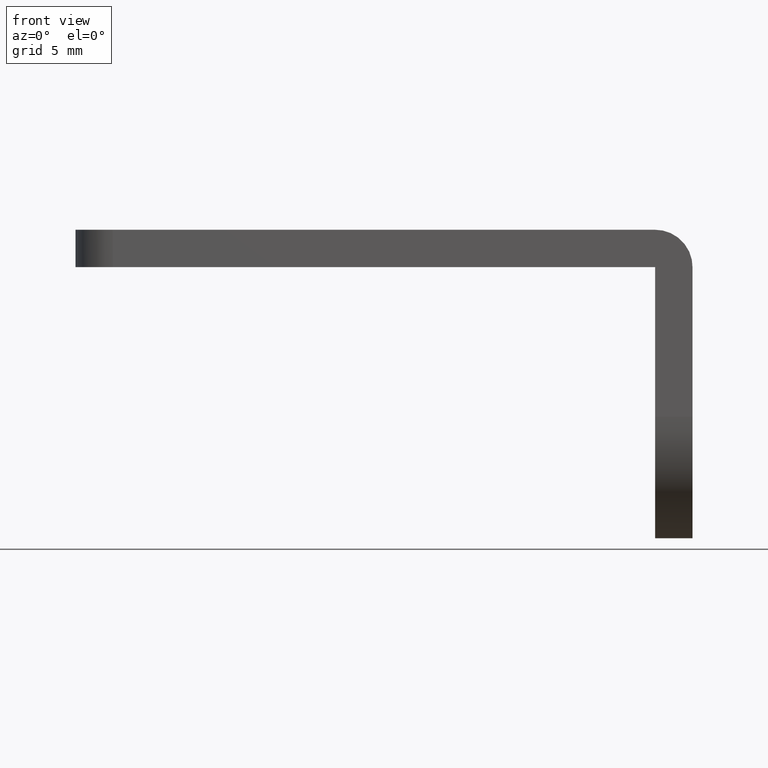
[diagram: clean part render]
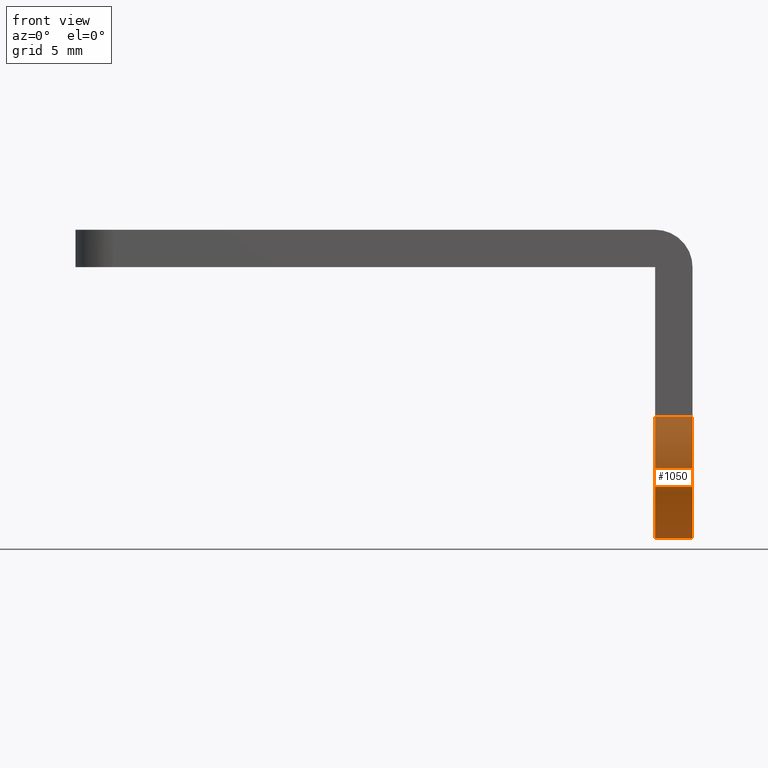
[diagram: same view with one face highlighted and labeled with its STEP entity id]
A machine part, front view. The second image highlights one B-rep face of the part: STEP entity #1050.
In plain terms, the highlighted face is a freeform B-spline surface patch.
Its self-contained STEP definition (entity closure, byte-faithful):
#804=CARTESIAN_POINT('',(-2.0,6.500000000000000,-1.193991E-015));
#805=VERTEX_POINT('',#804);
#806=CARTESIAN_POINT('',(-2.0,-6.500000000000000,1.193991E-015));
#807=VERTEX_POINT('',#806);
#808=CARTESIAN_POINT('',(-2.0,6.500000000000000,-1.193991E-015));
#809=CARTESIAN_POINT('',(-1.999999999999997,6.500025426505443,-0.345656446081939));
#810=CARTESIAN_POINT('',(-2.000000000000002,6.448974651867337,-0.983778392165899));
#811=CARTESIAN_POINT('',(-2.000000000000003,6.251026567345239,-1.840647117348953));
#812=CARTESIAN_POINT('',(-2.000000000000008,5.936241192412015,-2.703762827278696));
#813=CARTESIAN_POINT('',(-1.999999999999978,5.524925572956372,-3.467627936959102));
#814=CARTESIAN_POINT('',(-2.000000000000014,4.969690109730950,-4.216236978139025));
#815=CARTESIAN_POINT('',(-2.000000000000004,4.315125921380862,-4.899589401327991));
#816=CARTESIAN_POINT('',(-1.999999999999970,3.557235209807541,-5.468917830801994));
#817=CARTESIAN_POINT('',(-2.000000000000051,2.702830228493413,-5.932341434402829));
#818=CARTESIAN_POINT('',(-1.999999999999945,1.843445933456443,-6.260829179109481));
#819=CARTESIAN_POINT('',(-2.000000000000039,0.786592613153222,-6.484583147521252));
#820=CARTESIAN_POINT('',(-2.000000000000085,-0.200689680580520,-6.520947790900753));
#821=CARTESIAN_POINT('',(-1.999999999999906,-1.127039246762629,-6.418178689722023));
#822=CARTESIAN_POINT('',(-2.000000000000092,-1.969718634741845,-6.218072168985705));
#823=CARTESIAN_POINT('',(-1.999999999999881,-2.961392022278480,-5.825079316354625));
#824=CARTESIAN_POINT('',(-2.000000000000171,-3.892485264195813,-5.247398064412497));
#825=CARTESIAN_POINT('',(-1.999999999999970,-4.647295867504491,-4.571599508465138));
#826=CARTESIAN_POINT('',(-1.999999999999990,-5.176004431551932,-3.954853493041523));
#827=CARTESIAN_POINT('',(-2.000000000000012,-5.646312273409182,-3.260263654882156));
#828=CARTESIAN_POINT('',(-1.999999999999959,-6.102465573079885,-2.340184538032268));
#829=CARTESIAN_POINT('',(-2.000000000000109,-6.426472580652728,-1.209789316548541));
#830=CARTESIAN_POINT('',(-1.999999999999867,-6.500032757692410,-0.385540029992129));
#831=CARTESIAN_POINT('',(-2.0,-6.500000000000000,1.193991E-015));
#832=B_SPLINE_CURVE_WITH_KNOTS('',3,(#808,#809,#810,#811,#812,#813,#814,#815,#816,#817,#818,#819,#820,#821,#822,#823,#824,#825,#826,#827,#828,#829,#830,#831),.UNSPECIFIED.,.F.,.U.,(4,1,1,1,1,1,1,1,1,1,1,1,1,1,1,1,1,1,1,1,1,4),(0.000000055785154,1.036965685181901,1.914394275590116,2.632313006088687,3.788931591196974,4.506843486594113,5.424167088487160,6.620673878396687,7.338584896999844,8.335682672362676,9.372656980965527,10.569121763500840,11.287035985506140,12.164482380999440,13.161563963835450,14.477728813842839,15.434939765199051,16.192728185973579,16.910640513222710,17.947618174241001,19.263765361580720,20.420384281945129),.UNSPECIFIED.);
#833=EDGE_CURVE('',#805,#807,#832,.T.);
#902=CARTESIAN_POINT('',(0.0,6.500000000000000,-1.193991E-015));
#903=VERTEX_POINT('',#902);
#910=CARTESIAN_POINT('',(0.0,-6.500000000000000,1.193991E-015));
#911=VERTEX_POINT('',#910);
#917=CARTESIAN_POINT('',(0.0,6.500000000000000,-1.193991E-015));
#918=CARTESIAN_POINT('',(0.0,6.500025426505443,-0.345656446081939));
#919=CARTESIAN_POINT('',(0.0,6.448974651867337,-0.983778392165899));
#920=CARTESIAN_POINT('',(0.0,6.251026567345239,-1.840647117348953));
#921=CARTESIAN_POINT('',(0.0,5.936241192412015,-2.703762827278696));
#922=CARTESIAN_POINT('',(0.0,5.524925572956370,-3.467627936959101));
#923=CARTESIAN_POINT('',(0.0,4.969690109728950,-4.216236978145131));
#924=CARTESIAN_POINT('',(0.0,4.315125921394685,-4.899589401285813));
#925=CARTESIAN_POINT('',(0.0,3.557235209760538,-5.468917830945390));
#926=CARTESIAN_POINT('',(0.0,2.702830228743737,-5.932341433639144));
#927=CARTESIAN_POINT('',(0.0,1.843445932946580,-6.260829180859277));
#928=CARTESIAN_POINT('',(0.0,0.786592608404086,-6.484583160436219));
#929=CARTESIAN_POINT('',(0.0,-0.200689661954958,-6.520947739786201));
#930=CARTESIAN_POINT('',(0.0,-1.127039245872306,-6.418178681481102));
#931=CARTESIAN_POINT('',(0.0,-1.969723925902083,-6.218081066704937));
#932=CARTESIAN_POINT('',(0.0,-2.775431344360477,-5.898727223591263));
#933=CARTESIAN_POINT('',(0.0,-3.519434936810770,-5.483255877297874));
#934=CARTESIAN_POINT('',(0.0,-4.068859218736186,-5.083557429482355));
#935=CARTESIAN_POINT('',(0.0,-4.643752771220876,-4.568899328712618));
#936=CARTESIAN_POINT('',(0.0,-5.255342519951721,-3.881574613886546));
#937=CARTESIAN_POINT('',(0.0,-5.815967240619005,-2.971737441786986));
#938=CARTESIAN_POINT('',(0.0,-6.184935925254775,-2.057103988273804));
#939=CARTESIAN_POINT('',(0.0,-6.433183354544333,-1.103420147426776));
#940=CARTESIAN_POINT('',(0.0,-6.500055099206045,-0.425427942202473));
#941=CARTESIAN_POINT('',(0.0,-6.500000000000000,1.193991E-015));
#942=B_SPLINE_CURVE_WITH_KNOTS('',3,(#917,#918,#919,#920,#921,#922,#923,#924,#925,#926,#927,#928,#929,#930,#931,#932,#933,#934,#935,#936,#937,#938,#939,#940,#941),.UNSPECIFIED.,.F.,.U.,(4,1,1,1,1,1,1,1,1,1,1,1,1,1,1,1,1,1,1,1,1,1,4),(0.000000055785154,1.036965685181901,1.914394275590116,2.632313006088687,3.788931591196974,4.506843486594113,5.424167088487160,6.620673878396687,7.338584896999844,8.335682672362676,9.372656980965527,10.569121763500840,11.287035985506140,12.164482380999440,13.161563963835450,13.879477546868840,14.717032051945189,15.195637910634380,16.192728185973579,17.469012232420258,18.386327123504000,19.144114229800710,20.420384281945129),.UNSPECIFIED.);
#943=EDGE_CURVE('',#903,#911,#942,.T.);
#996=CARTESIAN_POINT('',(-2.0,6.500000000000000,-1.193991E-015));
#997=CARTESIAN_POINT('',(0.0,6.500000000000000,-1.193991E-015));
#998=QUASI_UNIFORM_CURVE('',1,(#996,#997),.UNSPECIFIED.,.F.,.U.);
#999=EDGE_CURVE('',#805,#903,#998,.T.);
#1018=CARTESIAN_POINT('',(-2.0,-6.500000000000000,1.193991E-015));
#1019=CARTESIAN_POINT('',(0.0,-6.500000000000000,1.193991E-015));
#1020=QUASI_UNIFORM_CURVE('',1,(#1018,#1019),.UNSPECIFIED.,.F.,.U.);
#1021=EDGE_CURVE('',#807,#911,#1020,.T.);
#1026=CARTESIAN_POINT('',(-2.050000000000000,6.497772612341120,0.170150164001184));
#1027=CARTESIAN_POINT('',(0.051250000000000,6.497772612341120,0.170150164001184));
#1028=CARTESIAN_POINT('',(-2.050000000000000,6.675513792475414,-6.617511658962258));
#1029=CARTESIAN_POINT('',(0.051250000000000,6.675513792475414,-6.617511658962258));
#1030=CARTESIAN_POINT('',(-2.050000000000000,-0.113440641842333,-6.499010018516541));
#1031=CARTESIAN_POINT('',(0.051250000000000,-0.113440641842333,-6.499010018516541));
#1032=CARTESIAN_POINT('',(-2.050000000000000,-6.902395076160080,-6.380508378070823));
#1033=CARTESIAN_POINT('',(0.051250000000000,-6.902395076160080,-6.380508378070823));
#1034=CARTESIAN_POINT('',(-2.050000000000000,-6.487876189742133,0.396815506976559));
#1035=CARTESIAN_POINT('',(0.051250000000000,-6.487876189742133,0.396815506976559));
#1043=(BOUNDED_SURFACE()B_SPLINE_SURFACE(1,2,((#1026,#1028,#1030,#1032,#1034),(#1027,#1029,#1031,#1033,#1035)),.UNSPECIFIED.,.F.,.F.,.U.)B_SPLINE_SURFACE_WITH_KNOTS((2,2),(3,2,3),(0.0,2.101250000000000),(0.0,11.103350901934260,22.206701803868519),.UNSPECIFIED.)GEOMETRIC_REPRESENTATION_ITEM()RATIONAL_B_SPLINE_SURFACE(((1.0,0.691513055782269,1.0,0.691513055782269,1.0),(1.0,0.691513055782269,1.0,0.691513055782269,1.0)))REPRESENTATION_ITEM('')SURFACE());
#1044=ORIENTED_EDGE('',*,*,#833,.F.);
#1045=ORIENTED_EDGE('',*,*,#999,.T.);
#1046=ORIENTED_EDGE('',*,*,#943,.T.);
#1047=ORIENTED_EDGE('',*,*,#1021,.F.);
#1048=EDGE_LOOP('',(#1044,#1045,#1046,#1047));
#1049=FACE_OUTER_BOUND('',#1048,.T.);
#1050=ADVANCED_FACE('',(#1049),#1043,.T.);